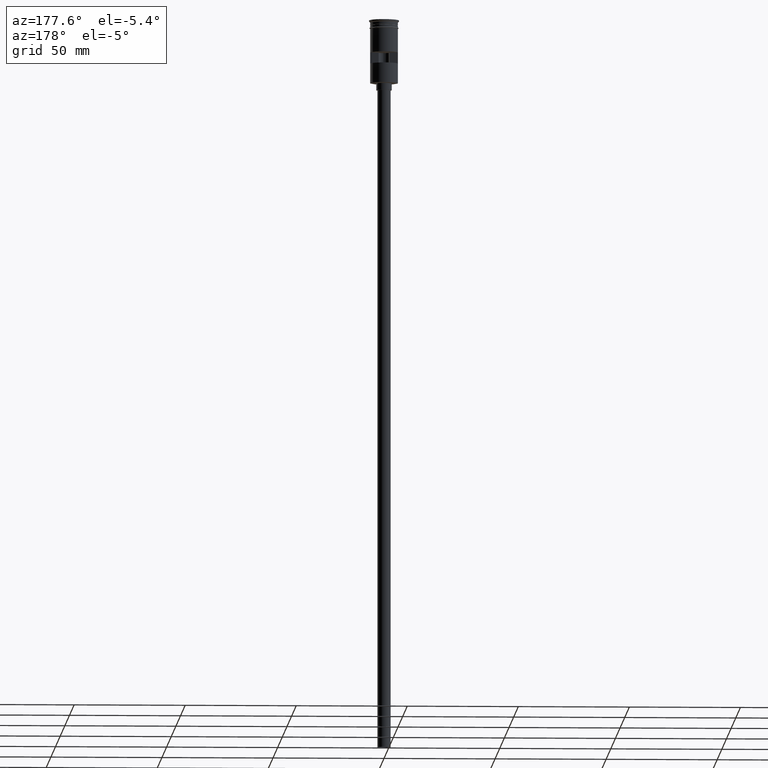
[diagram: clean part render]
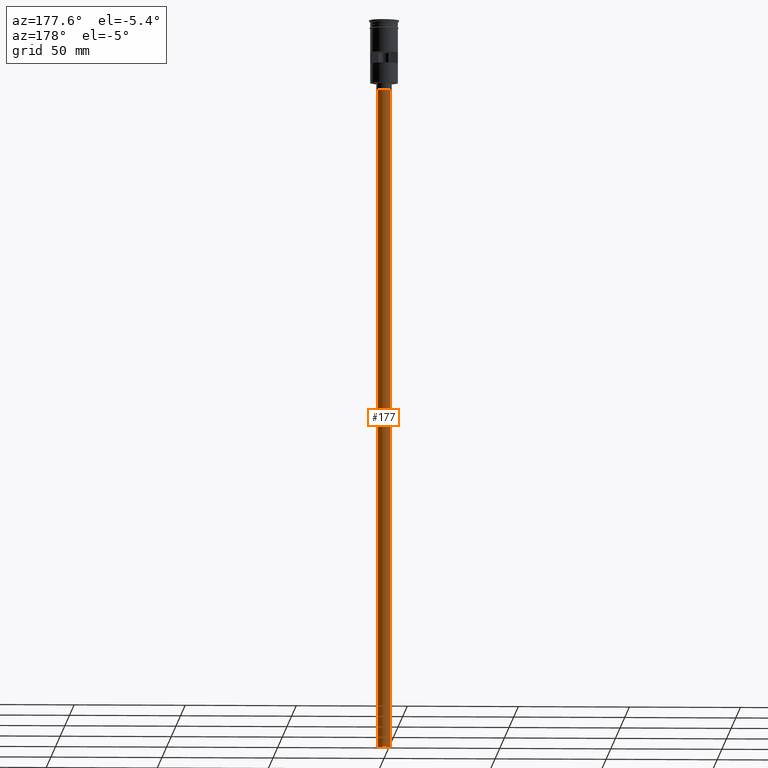
[diagram: same view with one face highlighted and labeled with its STEP entity id]
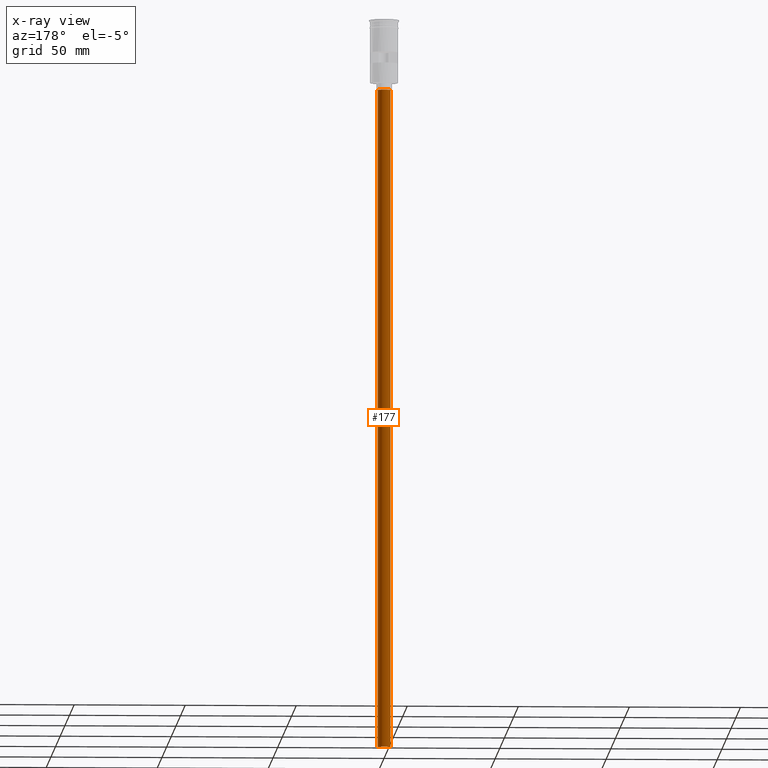
[diagram: x-ray of the same camera — body ghosted, the highlighted face saturated]
A machine part, auxiliary view. The second image highlights one B-rep face of the part: STEP entity #177.
The next image is the same camera in x-ray: the body ghosted, the highlighted face saturated — about 0% of this face is hidden behind the body in this view.
In plain terms, the highlighted cylindrical surface (edge-blend (fillet) strip) has radius 3 mm, axis along (-0, -0, 1).
Its self-contained STEP definition (entity closure, byte-faithful):
#58 = DIRECTION ( 'NONE',  ( -0.000000000000000000, -0.000000000000000000, 1.000000000000000000 ) ) ;
#69 = CARTESIAN_POINT ( 'NONE',  ( 0.000000000000000000, 0.000000000000000000, -328.5000000000000000 ) ) ;
#111 = EDGE_LOOP ( 'NONE', ( #772, #1191, #725, #1083 ) ) ;
#112 = CARTESIAN_POINT ( 'NONE',  ( 3.000000000000000444, 0.000000000000000000, -328.5000000000000000 ) ) ;
#118 = VERTEX_POINT ( 'NONE', #1064 ) ;
#139 = CARTESIAN_POINT ( 'NONE',  ( 0.000000000000000000, 0.000000000000000000, -328.5000000000000000 ) ) ;
#177 = ADVANCED_FACE ( 'NONE', ( #1082 ), #1178, .T. ) ;
#228 = AXIS2_PLACEMENT_3D ( 'NONE', #69, #569, #1577 ) ;
#252 = VERTEX_POINT ( 'NONE', #1384 ) ;
#345 = EDGE_CURVE ( 'NONE', #118, #467, #1532, .T. ) ;
#398 = DIRECTION ( 'NONE',  ( -1.000000000000000000, 0.000000000000000000, 0.000000000000000000 ) ) ;
#443 = EDGE_CURVE ( 'NONE', #900, #252, #1231, .T. ) ;
#467 = VERTEX_POINT ( 'NONE', #1589 ) ;
#569 = DIRECTION ( 'NONE',  ( -0.000000000000000000, -0.000000000000000000, 1.000000000000000000 ) ) ;
#660 = AXIS2_PLACEMENT_3D ( 'NONE', #1131, #1256, #1482 ) ;
#725 = ORIENTED_EDGE ( 'NONE', *, *, #972, .T. ) ;
#772 = ORIENTED_EDGE ( 'NONE', *, *, #1478, .F. ) ;
#845 = CARTESIAN_POINT ( 'NONE',  ( 3.000000000000000444, 0.000000000000000000, -328.5000000000000000 ) ) ;
#900 = VERTEX_POINT ( 'NONE', #845 ) ;
#972 = EDGE_CURVE ( 'NONE', #467, #252, #1101, .T. ) ;
#1036 = CARTESIAN_POINT ( 'NONE',  ( -3.000000000000000444, 3.673940397442060361E-16, -328.5000000000000000 ) ) ;
#1064 = CARTESIAN_POINT ( 'NONE',  ( -3.000000000000000444, 3.673940397442060361E-16, -328.5000000000000000 ) ) ;
#1082 = FACE_OUTER_BOUND ( 'NONE', #111, .T. ) ;
#1083 = ORIENTED_EDGE ( 'NONE', *, *, #443, .F. ) ;
#1101 = CIRCLE ( 'NONE', #660, 3.000000000000000444 ) ;
#1131 = CARTESIAN_POINT ( 'NONE',  ( 0.000000000000000000, 0.000000000000000000, -31.50000000000000000 ) ) ;
#1146 = VECTOR ( 'NONE', #1581, 1000.000000000000000 ) ;
#1178 = CYLINDRICAL_SURFACE ( 'NONE', #228, 3.000000000000000444 ) ;
#1191 = ORIENTED_EDGE ( 'NONE', *, *, #345, .T. ) ;
#1231 = LINE ( 'NONE', #112, #1146 ) ;
#1256 = DIRECTION ( 'NONE',  ( 0.000000000000000000, 0.000000000000000000, -1.000000000000000000 ) ) ;
#1263 = CIRCLE ( 'NONE', #1594, 3.000000000000000444 ) ;
#1300 = VECTOR ( 'NONE', #58, 1000.000000000000000 ) ;
#1384 = CARTESIAN_POINT ( 'NONE',  ( 3.000000000000000444, 0.000000000000000000, -31.50000000000000000 ) ) ;
#1478 = EDGE_CURVE ( 'NONE', #118, #900, #1263, .T. ) ;
#1482 = DIRECTION ( 'NONE',  ( -1.000000000000000000, 0.000000000000000000, 0.000000000000000000 ) ) ;
#1492 = DIRECTION ( 'NONE',  ( 0.000000000000000000, 0.000000000000000000, -1.000000000000000000 ) ) ;
#1532 = LINE ( 'NONE', #1036, #1300 ) ;
#1577 = DIRECTION ( 'NONE',  ( 1.000000000000000000, 0.000000000000000000, 0.000000000000000000 ) ) ;
#1581 = DIRECTION ( 'NONE',  ( -0.000000000000000000, -0.000000000000000000, 1.000000000000000000 ) ) ;
#1589 = CARTESIAN_POINT ( 'NONE',  ( -3.000000000000000444, 3.673940397442060361E-16, -31.50000000000000000 ) ) ;
#1594 = AXIS2_PLACEMENT_3D ( 'NONE', #139, #1492, #398 ) ;